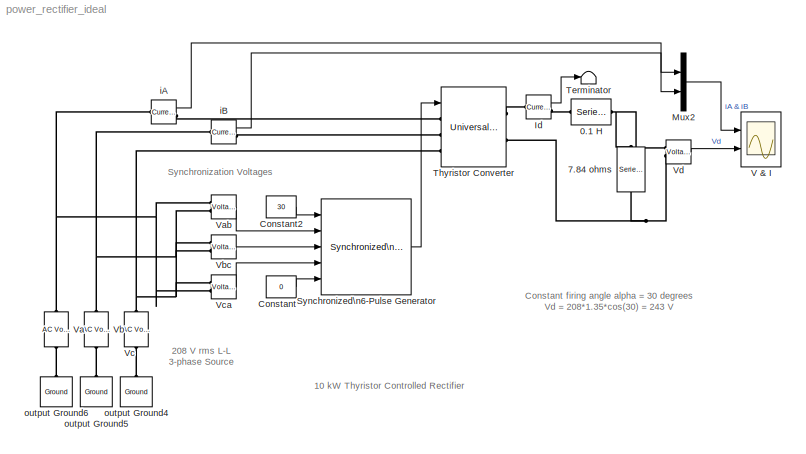
MODEL power_rectifier_ideal
KIND model
BLOCK [Reference] 0.1 H  REF=powerlib/Elements/Series RLC Branch
  AttributesFormatString = \\n
  Capacitance = inf
  Inductance = 100e-3
  LConnTagsString = __new0
  LeftPortType = p1
  Measurements = None
  PhysicalDomain = powersysdomain
  Ports = [0, 0, 0, 0, 0, 1, 1]
  RConnTagsString = __new0
  Resistance = 0
  RightPortType = p1
  SourceBlock = powerlib/Elements/Series RLC Branch
  SourceType = Series RLC Branch
  SubClassName = unknown
BLOCK [Reference] 7.84 ohms  REF=powerlib/Elements/Series RLC Branch
  AttributesFormatString = \\n
  Capacitance = inf
  Inductance = 0
  LConnTagsString = __new0
  LeftPortType = p1
  Measurements = None
  PhysicalDomain = powersysdomain
  Ports = [0, 0, 0, 0, 0, 1, 1]
  RConnTagsString = __new0
  Resistance = 7.84
  RightPortType = p1
  SourceBlock = powerlib/Elements/Series RLC Branch
  SourceType = Series RLC Branch
  SubClassName = unknown
BLOCK [Constant] Constant
  Value = 0
BLOCK [Constant] Constant2
  Value = 30
BLOCK [Reference] Id  REF=powerlib/Measurements/Current Measurement
  AttributesFormatString = \\n
  OutputType = Magnitude
  PSBequivalent = 0
  PhasorSimulation = off
  Ports = [0, 1, 0, 0, 0, 1, 1]
  ShowPortLabels = on
  SourceBlock = powerlib/Measurements/Current Measurement
  SourceType = Current Measurement
  Tag = PoWeRsYsTeMmEaSuReMeNt
BLOCK [Mux] Mux2
  Inputs = 2
  Ports = [2, 1]
BLOCK [Reference] Synchronized\n6-Pulse Generator  REF=powerlib_extras/Control \nBlocks/Synchronized\n6-Pulse Generator
  Double_Pulse = off
  Ports = [5, 1]
  ShowPortLabels = on
  SourceBlock = powerlib_extras/Control \nBlocks/Synchronized\n6-Pulse Generator
  SourceType = Synchronized 6-pulse generator
  freq = 60
  pwidth = 10
BLOCK [Terminator] Terminator
BLOCK [Reference] Thyristor Converter  REF=powerlib/Power\nElectronics/Universal Bridge
  Arms = 3
  AttributesFormatString = \\n
  Device = Thyristors
  ForwardVoltage = 0.8
  ForwardVoltages = [  0.8  0.8  ]
  GTOparameters = [ 10e-6 , 20e-6 ]
  IGBTparameters = [ 1e-6 , 2e-6 ]
  Lon = 1e-6
  Measurements = Device currents
  Ports = [1, 0, 0, 0, 0, 3, 2]
  Ron = 0.01
  ShowPortLabels = on
  SnubberCapacitance = .01e-6
  SnubberResistance = 500
  SourceBlock = powerlib/Power\nElectronics/Universal Bridge
  SourceType = Universal Bridge
BLOCK [Scope] V & I
  DataFormat = Structure
  LimitDataPoints = off
  NumInputPorts = 2
  Ports = [2]
  TimeRange = 0.1
  YMax = 40~250
  YMin = -40~0
  ZoomMode = yonly
BLOCK [Reference] Va  REF=powerlib/Electrical\nSources/AC Voltage Source
  Amplitude = 208*sqrt(2/3)
  AttributesFormatString = \\n
  Description = source block
  Frequency = 60
  Measurements = None
  Phase = 0
  Ports = [0, 0, 0, 0, 0, 1, 1]
  SampleTime = 0
  ShowPortLabels = on
  SourceBlock = powerlib/Electrical\nSources/AC Voltage Source
  SourceType = AC Voltage Source
BLOCK [Reference] Vab  REF=powerlib/Measurements/Voltage Measurement
  AttributesFormatString = \\n
  OutputType = Magnitude
  PSBequivalent = 0
  PhasorSimulation = off
  Ports = [0, 1, 0, 0, 0, 2]
  ShowPortLabels = on
  SourceBlock = powerlib/Measurements/Voltage Measurement
  SourceType = Voltage Measurement
  Tag = PoWeRsYsTeMmEaSuReMeNt
BLOCK [Reference] Vb  REF=powerlib/Electrical\nSources/AC Voltage Source
  Amplitude = 208*sqrt(2/3)
  AttributesFormatString = \\n
  Description = source block
  Frequency = 60
  Measurements = None
  Phase = -120
  Ports = [0, 0, 0, 0, 0, 1, 1]
  SampleTime = 0
  ShowPortLabels = on
  SourceBlock = powerlib/Electrical\nSources/AC Voltage Source
  SourceType = AC Voltage Source
BLOCK [Reference] Vbc  REF=powerlib/Measurements/Voltage Measurement
  AttributesFormatString = \\n
  OutputType = Magnitude
  PSBequivalent = 0
  PhasorSimulation = off
  Ports = [0, 1, 0, 0, 0, 2]
  ShowPortLabels = on
  SourceBlock = powerlib/Measurements/Voltage Measurement
  SourceType = Voltage Measurement
  Tag = PoWeRsYsTeMmEaSuReMeNt
BLOCK [Reference] Vc  REF=powerlib/Electrical\nSources/AC Voltage Source
  Amplitude = 208*sqrt(2/3)
  AttributesFormatString = \\n
  Description = source block
  Frequency = 60
  Measurements = None
  Phase = 120
  Ports = [0, 0, 0, 0, 0, 1, 1]
  SampleTime = 0
  ShowPortLabels = on
  SourceBlock = powerlib/Electrical\nSources/AC Voltage Source
  SourceType = AC Voltage Source
BLOCK [Reference] Vca  REF=powerlib/Measurements/Voltage Measurement
  AttributesFormatString = \\n
  OutputType = Magnitude
  PSBequivalent = 0
  PhasorSimulation = off
  Ports = [0, 1, 0, 0, 0, 2]
  ShowPortLabels = on
  SourceBlock = powerlib/Measurements/Voltage Measurement
  SourceType = Voltage Measurement
  Tag = PoWeRsYsTeMmEaSuReMeNt
BLOCK [Reference] Vd  REF=powerlib/Measurements/Voltage Measurement
  AttributesFormatString = \\n
  OutputType = Magnitude
  PSBequivalent = 0
  PhasorSimulation = off
  Ports = [0, 1, 0, 0, 0, 2]
  ShowPortLabels = on
  SourceBlock = powerlib/Measurements/Voltage Measurement
  SourceType = Voltage Measurement
  Tag = PoWeRsYsTeMmEaSuReMeNt
BLOCK [Reference] iA  REF=powerlib/Measurements/Current Measurement
  AttributesFormatString = \\n
  OutputType = Magnitude
  PSBequivalent = 0
  PhasorSimulation = off
  Ports = [0, 1, 0, 0, 0, 1, 1]
  ShowPortLabels = on
  SourceBlock = powerlib/Measurements/Current Measurement
  SourceType = Current Measurement
  Tag = PoWeRsYsTeMmEaSuReMeNt
BLOCK [Reference] iB  REF=powerlib/Measurements/Current Measurement
  AttributesFormatString = \\n
  OutputType = Magnitude
  PSBequivalent = 0
  PhasorSimulation = off
  Ports = [0, 1, 0, 0, 0, 1, 1]
  ShowPortLabels = on
  SourceBlock = powerlib/Measurements/Current Measurement
  SourceType = Current Measurement
  Tag = PoWeRsYsTeMmEaSuReMeNt
BLOCK [Reference] output Ground4  REF=powerlib/Elements/Ground
  AttributesFormatString = \\n
  LConnTagsString = a
  LeftPortType = p1
  PhysicalDomain = powersysdomain
  Ports = [0, 0, 0, 0, 0, 1]
  RightPortType = p1
  SourceBlock = powerlib/Elements/Ground
  SourceType = Ground
  SubClassName = unknown
BLOCK [Reference] output Ground5  REF=powerlib/Elements/Ground
  AttributesFormatString = \\n
  LConnTagsString = a
  LeftPortType = p1
  PhysicalDomain = powersysdomain
  Ports = [0, 0, 0, 0, 0, 1]
  RightPortType = p1
  SourceBlock = powerlib/Elements/Ground
  SourceType = Ground
  SubClassName = unknown
BLOCK [Reference] output Ground6  REF=powerlib/Elements/Ground
  AttributesFormatString = \\n
  LConnTagsString = a
  LeftPortType = p1
  PhysicalDomain = powersysdomain
  Ports = [0, 0, 0, 0, 0, 1]
  RightPortType = p1
  SourceBlock = powerlib/Elements/Ground
  SourceType = Ground
  SubClassName = unknown
ANNOTATION (root): 10 kW Thyristor Controlled Rectifier
ANNOTATION (root): 208 V rms L-L\n3-phase Source
ANNOTATION (root): Constant firing angle alpha = 30 degrees\nVd = 208*1.35*cos(30) = 243 V
ANNOTATION (root): Synchronization Voltages
LINE Constant2:1 -> Synchronized\n6-Pulse Generator:1
LINE Constant:1 -> Synchronized\n6-Pulse Generator:5
LINE Id:1 -> Terminator:1
LINE Mux2:1 -> V & I:1
LINE Synchronized\n6-Pulse Generator:1 -> Thyristor Converter:1
LINE Vab:1 -> Synchronized\n6-Pulse Generator:2
LINE Vbc:1 -> Synchronized\n6-Pulse Generator:3
LINE Vca:1 -> Synchronized\n6-Pulse Generator:4
LINE Vd:1 -> V & I:2
LINE iA:1 -> Mux2:1
LINE iB:1 -> Mux2:2
PLINE 0.1 H:LConn1 -- Id:RConn1
PNET net1: 0.1 H:RConn1 -- 7.84 ohms:LConn1 -- Vd:LConn1
PNET net2: 7.84 ohms:RConn1 -- Thyristor Converter:RConn2 -- Vd:LConn2
PLINE Id:LConn1 -- Thyristor Converter:RConn1
PLINE Thyristor Converter:LConn1 -- iA:RConn1
PLINE Thyristor Converter:LConn2 -- iB:RConn1
PNET net3: Thyristor Converter:LConn3 -- Vbc:LConn2 -- Vc:RConn1 -- Vca:LConn1
PLINE Va:LConn1 -- output Ground6:LConn1
PNET net4: Va:RConn1 -- Vab:LConn1 -- Vca:LConn2 -- iA:LConn1
PNET net5: Vab:LConn2 -- Vb:RConn1 -- Vbc:LConn1 -- iB:LConn1
PLINE Vb:LConn1 -- output Ground5:LConn1
PLINE Vc:LConn1 -- output Ground4:LConn1
note: PNET lines group multi-terminal physical nets as a canonical sorted terminal list (undirected conserving connections); 2-terminal nets keep the pairwise PLINE form
